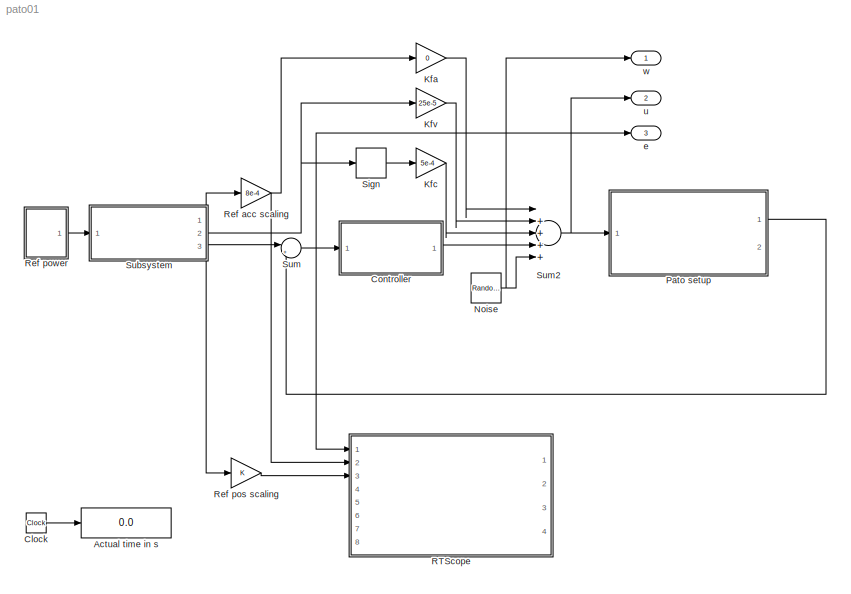
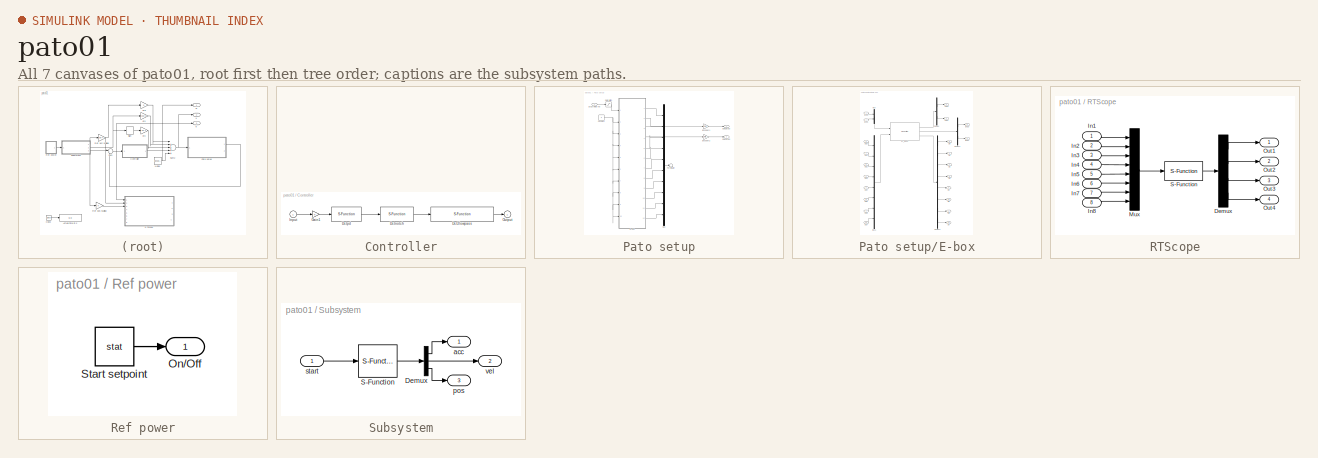
[diagram: thumbnail index - all 7 canvases of the model, root first then tree order]
MODEL pato01
KIND model
BLOCK [Display] Actual time in s
  Decimation = 1
  Lockdown = off
  Ports = [1]
  SID = 1
BLOCK [Clock] Clock
  SID = 2
BLOCK [SubSystem] Controller
  FunctionWithSeparateData = off
  MaskCallbackString = |||||||
  MaskDescription = The controller consists of three filters: a Kp/Kv, a notch and a roll-off filter.\nYou can edit the parameters below.
  MaskEnableString = on,on,on,on,on,on,on,on
  MaskHideContents = off
  MaskIconFrame = on
  MaskIconOpaque = on
  MaskIconRotate = none
  MaskIconUnits = autoscale
  MaskPortRotate = default
  MaskPromptString = Kp|Kv|Notch zeros [Hz]|Notch damping zeros [-]|Notch poles [Hz]|Notch damping poles [-]|Roll-off poles [Hz]|Roll-off damping poles [-]
  MaskStyleString = edit,edit,edit,edit,edit,edit,edit,edit
  MaskToolTipString = on,on,on,on,on,on,on,on
  MaskTunableValueString = on,on,on,on,on,on,on,on
  MaskType = Controller
  MaskValueString = .5|0.05|300|0.1|300|0.1|200|0.5
  MaskVariables = Kp=@1;Kv=@2;notch_zeros=@3;notch_damping_zeros=@4;notch_poles=@5;notch_damping_poles=@6;roll_off_poles=@7;roll_off_damping_poles=@8;
  MaskVisibilityString = on,on,on,on,on,on,on,on
  MinAlgLoopOccurrences = off
  Opaque = off
  Ports = [1, 1]
  PropExecContextOutsideSubsystem = off
  RTWSystemCode = Auto
  RequestExecContextInheritance = off
  SID = 3
BLOCK [S-Function] Controller/Dct2lowpass
  EnableBusSupport = off
  FunctionName = dlowpass2
  MaskCallbackString = |
  MaskDescription = This block implements a discrete time 2nd order lowpass filter.
  MaskDisplay = disp('DCT 2nd order lowpass')
  MaskEnableString = on,on
  MaskIconFrame = on
  MaskIconOpaque = on
  MaskIconRotate = none
  MaskIconUnits = autoscale
  MaskPortRotate = default
  MaskPromptString = Pole [Hz]|Damping pole [-]
  MaskStyleString = edit,edit
  MaskToolTipString = on,on
  MaskTunableValueString = on,on
  MaskType = dctools
  MaskValueString = roll_off_poles|roll_off_damping_poles
  MaskVariables = f_den=@1;b_den=@2;
  MaskVisibilityString = on,on
  Parameters = [f_den b_den 0.001]
  Ports = [1, 1]
  SID = 5
BLOCK [S-Function] Controller/Dctnotch
  EnableBusSupport = off
  FunctionName = dnotch
  MaskCallbackString = |||
  MaskDescription = This block implements a dicrete time 2nd order notch filter.
  MaskDisplay = disp('DCT notch')
  MaskEnableString = on,on,on,on
  MaskIconFrame = on
  MaskIconOpaque = on
  MaskIconRotate = none
  MaskIconUnits = autoscale
  MaskPortRotate = default
  MaskPromptString = Zero [Hz]|Damping zero [-]|Pole [Hz]|Damping pole [-]
  MaskStyleString = edit,edit,edit,edit
  MaskToolTipString = on,on,on,on
  MaskTunableValueString = on,on,on,on
  MaskType = dctools
  MaskValueString = notch_zeros|notch_damping_zeros|notch_poles|notch_damping_poles
  MaskVariables = f_num=@1;b_num=@2;f_den=@3;b_den=@4;
  MaskVisibilityString = on,on,on,on
  Parameters = [f_num b_num f_den b_den 0.001]
  Ports = [1, 1]
  SID = 6
BLOCK [S-Function] Controller/Dctpd
  EnableBusSupport = off
  FunctionName = dpd
  MaskCallbackString = |
  MaskDescription = This block implements a discrete time pd filter.
  MaskDisplay = disp('DCT pd')
  MaskEnableString = on,on
  MaskIconFrame = on
  MaskIconOpaque = on
  MaskIconRotate = none
  MaskIconUnits = autoscale
  MaskPortRotate = default
  MaskPromptString = Kp|Kv
  MaskStyleString = edit,edit
  MaskToolTipString = on,on
  MaskTunableValueString = on,on
  MaskType = dctools
  MaskValueString = Kp|Kv
  MaskVariables = kp=@1;kv=@2;
  MaskVisibilityString = on,on
  Parameters = [kp kv 0.001]
  Ports = [1, 1]
  SID = 7
BLOCK [Gain] Controller/Gain1
  SID = 8
BLOCK [Inport] Controller/Input
  IconDisplay = Port number
  SID = 4
BLOCK [Outport] Controller/Output
  IconDisplay = Port number
  SID = 9
BLOCK [Gain] Kfa
  Gain = 0
  SID = 10
BLOCK [Gain] Kfc
  Gain = 5e-4
  SID = 11
BLOCK [Gain] Kfv
  Gain = 25e-5
  SID = 12
BLOCK [RandomNumber] Noise
  SID = 13
  SampleTime = 0
  Variance = 0
BLOCK [SubSystem] Pato setup
  FunctionWithSeparateData = off
  MaskDescription = Inc encoder positions 1-2 [rad] (see connector pannel).\n
  MaskHideContents = off
  MaskIconFrame = off
  MaskIconOpaque = on
  MaskIconRotate = none
  MaskIconUnits = autoscale
  MaskPortRotate = default
  MaskType = Encoders
  MinAlgLoopOccurrences = off
  Opaque = off
  Ports = [1, 2]
  PropExecContextOutsideSubsystem = off
  RTWSystemCode = Auto
  RequestExecContextInheritance = off
  SID = 14
BLOCK [Constant] Pato setup/Constant
  SID = 16
  Value = 0
BLOCK [Inport] Pato setup/DAC0 (motor) [V]
  IconDisplay = Port number
  SID = 15
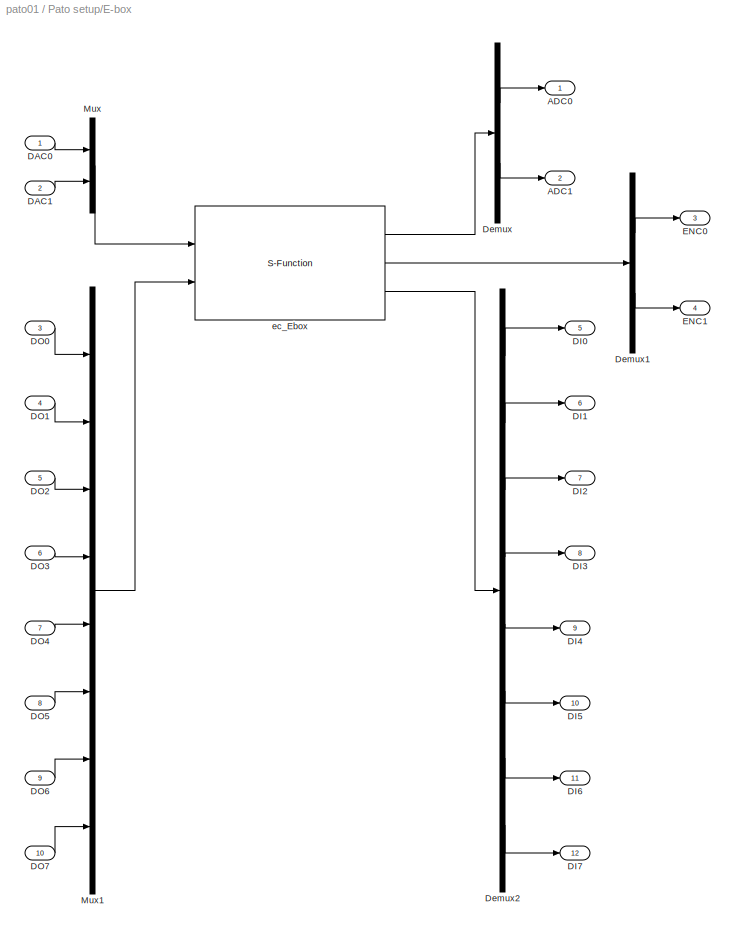
BLOCK [SubSystem] Pato setup/E-box
  FunctionWithSeparateData = off
  MaskEnableString = on
  MaskHideContents = off
  MaskIconFrame = on
  MaskIconOpaque = on
  MaskIconRotate = none
  MaskIconUnits = autoscale
  MaskPortRotate = default
  MaskPromptString = Link id (>=0)
  MaskStyleString = edit
  MaskToolTipString = on
  MaskTunableValueString = on
  MaskType = E-box
  MaskValueString = 0
  MaskVariables = link_id=@1;
  MaskVisibilityString = on
  MinAlgLoopOccurrences = off
  Opaque = off
  Ports = [10, 12]
  PropExecContextOutsideSubsystem = off
  RTWSystemCode = Auto
  RequestExecContextInheritance = off
  SID = 17
BLOCK [Outport] Pato setup/E-box/ADC0
  IconDisplay = Port number
  SID = 34
BLOCK [Outport] Pato setup/E-box/ADC1
  IconDisplay = Port number
  Port = 2
  SID = 35
BLOCK [Inport] Pato setup/E-box/DAC0
  IconDisplay = Port number
  SID = 18
BLOCK [Inport] Pato setup/E-box/DAC1
  IconDisplay = Port number
  Port = 2
  SID = 19
BLOCK [Outport] Pato setup/E-box/DI0
  IconDisplay = Port number
  Port = 5
  SID = 38
BLOCK [Outport] Pato setup/E-box/DI1
  IconDisplay = Port number
  Port = 6
  SID = 39
BLOCK [Outport] Pato setup/E-box/DI2
  IconDisplay = Port number
  Port = 7
  SID = 40
BLOCK [Outport] Pato setup/E-box/DI3
  IconDisplay = Port number
  Port = 8
  SID = 41
BLOCK [Outport] Pato setup/E-box/DI4
  IconDisplay = Port number
  Port = 9
  SID = 42
BLOCK [Outport] Pato setup/E-box/DI5
  IconDisplay = Port number
  Port = 10
  SID = 43
BLOCK [Outport] Pato setup/E-box/DI6
  IconDisplay = Port number
  Port = 11
  SID = 44
BLOCK [Outport] Pato setup/E-box/DI7
  IconDisplay = Port number
  Port = 12
  SID = 45
BLOCK [Inport] Pato setup/E-box/DO0
  IconDisplay = Port number
  Port = 3
  SID = 20
BLOCK [Inport] Pato setup/E-box/DO1
  IconDisplay = Port number
  Port = 4
  SID = 21
BLOCK [Inport] Pato setup/E-box/DO2
  IconDisplay = Port number
  Port = 5
  SID = 22
BLOCK [Inport] Pato setup/E-box/DO3
  IconDisplay = Port number
  Port = 6
  SID = 23
BLOCK [Inport] Pato setup/E-box/DO4
  IconDisplay = Port number
  Port = 7
  SID = 24
BLOCK [Inport] Pato setup/E-box/DO5
  IconDisplay = Port number
  Port = 8
  SID = 25
BLOCK [Inport] Pato setup/E-box/DO6
  IconDisplay = Port number
  Port = 9
  SID = 26
BLOCK [Inport] Pato setup/E-box/DO7
  IconDisplay = Port number
  Port = 10
  SID = 27
BLOCK [Demux] Pato setup/E-box/Demux
  DisplayOption = bar
  Outputs = 2
  Ports = [1, 2]
  SID = 28
BLOCK [Demux] Pato setup/E-box/Demux1
  DisplayOption = bar
  Outputs = 2
  Ports = [1, 2]
  SID = 29
BLOCK [Demux] Pato setup/E-box/Demux2
  DisplayOption = bar
  Outputs = 8
  Ports = [1, 8]
  SID = 30
BLOCK [Outport] Pato setup/E-box/ENC0
  IconDisplay = Port number
  Port = 3
  SID = 36
BLOCK [Outport] Pato setup/E-box/ENC1
  IconDisplay = Port number
  Port = 4
  SID = 37
BLOCK [Mux] Pato setup/E-box/Mux
  DisplayOption = bar
  Inputs = 2
  Ports = [2, 1]
  SID = 31
BLOCK [Mux] Pato setup/E-box/Mux1
  DisplayOption = bar
  Inputs = 8
  Ports = [8, 1]
  SID = 32
BLOCK [S-Function] Pato setup/E-box/ec_Ebox
  EnableBusSupport = off
  FunctionName = ec_Ebox
  MaskDisplay = port_label('output',1,'ADC')\nport_label('output',2,'ENC')\nport_label('output',3,'DI')\nport_label('input',1,'DAC')\nport_label('input',2,'DO')
  MaskEnableString = on
  MaskIconFrame = on
  MaskIconOpaque = on
  MaskIconRotate = none
  MaskIconUnits = autoscale
  MaskPortRotate = default
  MaskPromptString = analog in id (start from 1)
  MaskStyleString = edit
  MaskToolTipString = on
  MaskTunableValueString = on
  MaskValueString = link_id
  MaskVariables = link_id=@1;
  MaskVisibilityString = on
  Parameters = link_id
  Ports = [2, 3]
  SID = 33
BLOCK [Outport] Pato setup/ENC0 [rad]
  IconDisplay = Port number
  SID = 48
BLOCK [Outport] Pato setup/ENC1 [rad]
  IconDisplay = Port number
  Port = 2
  SID = 49
BLOCK [Gain] Pato setup/Encoder 1
  Gain = (2*pi)/(500*4)
  SID = 46
BLOCK [Gain] Pato setup/Encoder 2
  Gain = 2*pi/(500*4)
  SID = 47
BLOCK [Mux] Pato setup/Mux
  DisplayOption = bar
  Inputs = 10
  Ports = [10, 1]
  SID = 85
BLOCK [Saturate] Pato setup/Saturation
  InputPortMap = u0
  LowerLimit = -2.5
  Ports = [1, 1]
  SID = 86
  UpperLimit = 2.5
BLOCK [Terminator] Pato setup/Terminator
  SID = 84
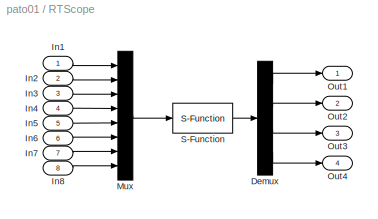
BLOCK [SubSystem] RTScope
  FunctionWithSeparateData = off
  MaskDisplay = image(imread('rtscope2.jpg'))
  MaskHideContents = off
  MaskIconFrame = on
  MaskIconOpaque = on
  MaskIconRotate = none
  MaskIconUnits = autoscale
  MaskPortRotate = default
  MaskType = RTScope
  MinAlgLoopOccurrences = off
  Opaque = off
  OpenFcn = rtscope
  Ports = [8, 4]
  PropExecContextOutsideSubsystem = off
  RTWSystemCode = Auto
  RequestExecContextInheritance = off
  SID = 50
BLOCK [Demux] RTScope/Demux
  Ports = [1, 4]
  SID = 59
BLOCK [Inport] RTScope/In1
  IconDisplay = Port number
  SID = 51
BLOCK [Inport] RTScope/In2
  IconDisplay = Port number
  Port = 2
  SID = 52
BLOCK [Inport] RTScope/In3
  IconDisplay = Port number
  Port = 3
  SID = 53
BLOCK [Inport] RTScope/In4
  IconDisplay = Port number
  Port = 4
  SID = 54
BLOCK [Inport] RTScope/In5
  IconDisplay = Port number
  Port = 5
  SID = 55
BLOCK [Inport] RTScope/In6
  IconDisplay = Port number
  Port = 6
  SID = 56
BLOCK [Inport] RTScope/In7
  IconDisplay = Port number
  Port = 7
  SID = 57
BLOCK [Inport] RTScope/In8
  IconDisplay = Port number
  Port = 8
  SID = 58
BLOCK [Mux] RTScope/Mux
  DisplayOption = bar
  Inputs = 8
  Ports = [8, 1]
  SID = 60
BLOCK [Outport] RTScope/Out1
  IconDisplay = Port number
  SID = 62
BLOCK [Outport] RTScope/Out2
  IconDisplay = Port number
  Port = 2
  SID = 63
BLOCK [Outport] RTScope/Out3
  IconDisplay = Port number
  Port = 3
  SID = 64
BLOCK [Outport] RTScope/Out4
  IconDisplay = Port number
  Port = 4
  SID = 65
BLOCK [S-Function] RTScope/S-Function
  EnableBusSupport = off
  FunctionName = sf_rt_scope
  Parameters = 4096
  Ports = [1, 1]
  SID = 61
BLOCK [Gain] Ref acc scaling 
  Gain = 8e-4
  SID = 66
BLOCK [Gain] Ref pos scaling
  SID = 67
BLOCK [SubSystem] Ref power
  FunctionWithSeparateData = off
  MaskEnableString = on
  MaskHideContents = off
  MaskIconFrame = on
  MaskIconOpaque = off
  MaskIconRotate = none
  MaskIconUnits = autoscale
  MaskPortRotate = default
  MaskPromptString = Switch
  MaskStyleString = popup(On|Off)
  MaskToolTipString = on
  MaskTunableValueString = on
  MaskType = On/Off Switch
  MaskValueString = Off
  MaskVariables = stat=@1;
  MaskVisibilityString = on
  MinAlgLoopOccurrences = off
  Opaque = off
  Ports = [0, 1]
  PropExecContextOutsideSubsystem = off
  RTWSystemCode = Auto
  RequestExecContextInheritance = off
  SID = 68
BLOCK [Outport] Ref power/On//Off
  IconDisplay = Port number
  SID = 70
BLOCK [Constant] Ref power/Start setpoint
  SID = 69
  Value = stat
BLOCK [Signum] Sign
  SID = 71
BLOCK [SubSystem] Subsystem
  FunctionWithSeparateData = off
  MaskDisplay = disp('Ref3');\n
  MaskHideContents = off
  MaskIconFrame = off
  MaskIconOpaque = off
  MaskIconRotate = none
  MaskIconUnits = autoscale
  MaskPortRotate = default
  MaskType = Ref3
  MinAlgLoopOccurrences = off
  Opaque = off
  OpenFcn = global ref_part; cb_axes 1
  Ports = [1, 3]
  PropExecContextOutsideSubsystem = off
  RTWSystemCode = Auto
  RequestExecContextInheritance = off
  SID = 72
BLOCK [Demux] Subsystem/Demux
  Outputs = 3
  Ports = [1, 3]
  SID = 74
BLOCK [S-Function] Subsystem/S-Function
  EnableBusSupport = off
  FunctionName = ref3b
  OpenFcn = global ref_part; r3g_main
  Parameters = ref_part
  Ports = [1, 1]
  SID = 75
BLOCK [Outport] Subsystem/acc
  IconDisplay = Port number
  SID = 76
BLOCK [Outport] Subsystem/pos
  IconDisplay = Port number
  Port = 3
  SID = 78
BLOCK [Inport] Subsystem/start
  IconDisplay = Port number
  SID = 73
BLOCK [Outport] Subsystem/vel
  IconDisplay = Port number
  Port = 2
  SID = 77
BLOCK [Sum] Sum
  IconShape = round
  Inputs = |+-
  Ports = [2, 1]
  SID = 79
BLOCK [Sum] Sum2
  Description = sumff
  Inputs = |+++++
  Ports = [5, 1]
  SID = 80
BLOCK [Outport] e
  IconDisplay = Port number
  Port = 3
  SID = 83
BLOCK [Outport] u
  IconDisplay = Port number
  Port = 2
  SID = 82
BLOCK [Outport] w
  IconDisplay = Port number
  SID = 81
LINE Clock:1 -> Actual time in s:1
LINE Controller/Dct2lowpass:1 -> Controller/Output:1
LINE Controller/Dctnotch:1 -> Controller/Dct2lowpass:1
LINE Controller/Dctpd:1 -> Controller/Dctnotch:1
LINE Controller/Gain1:1 -> Controller/Dctpd:1
LINE Controller/Input:1 -> Controller/Gain1:1
LINE Controller:1 -> Sum2:4
LINE Kfa:1 -> Sum2:1
LINE Kfc:1 -> Sum2:3
LINE Kfv:1 -> Sum2:2
NET Noise:1 -> Sum2:5, w:1
NET Pato setup/Constant:1 -> Pato setup/E-box:10, Pato setup/E-box:2, Pato setup/E-box:3, Pato setup/E-box:4, Pato setup/E-box:5, Pato setup/E-box:6, Pato setup/E-box:7, Pato setup/E-box:8, Pato setup/E-box:9
LINE Pato setup/DAC0 (motor) [V]:1 -> Pato setup/Saturation:1
LINE Pato setup/E-box/DAC0:1 -> Pato setup/E-box/Mux:1
LINE Pato setup/E-box/DAC1:1 -> Pato setup/E-box/Mux:2
LINE Pato setup/E-box/DO0:1 -> Pato setup/E-box/Mux1:1
LINE Pato setup/E-box/DO1:1 -> Pato setup/E-box/Mux1:2
LINE Pato setup/E-box/DO2:1 -> Pato setup/E-box/Mux1:3
LINE Pato setup/E-box/DO3:1 -> Pato setup/E-box/Mux1:4
LINE Pato setup/E-box/DO4:1 -> Pato setup/E-box/Mux1:5
LINE Pato setup/E-box/DO5:1 -> Pato setup/E-box/Mux1:6
LINE Pato setup/E-box/DO6:1 -> Pato setup/E-box/Mux1:7
LINE Pato setup/E-box/DO7:1 -> Pato setup/E-box/Mux1:8
LINE Pato setup/E-box/Demux1:1 -> Pato setup/E-box/ENC0:1
LINE Pato setup/E-box/Demux1:2 -> Pato setup/E-box/ENC1:1
LINE Pato setup/E-box/Demux2:1 -> Pato setup/E-box/DI0:1
LINE Pato setup/E-box/Demux2:2 -> Pato setup/E-box/DI1:1
LINE Pato setup/E-box/Demux2:3 -> Pato setup/E-box/DI2:1
LINE Pato setup/E-box/Demux2:4 -> Pato setup/E-box/DI3:1
LINE Pato setup/E-box/Demux2:5 -> Pato setup/E-box/DI4:1
LINE Pato setup/E-box/Demux2:6 -> Pato setup/E-box/DI5:1
LINE Pato setup/E-box/Demux2:7 -> Pato setup/E-box/DI6:1
LINE Pato setup/E-box/Demux2:8 -> Pato setup/E-box/DI7:1
LINE Pato setup/E-box/Demux:1 -> Pato setup/E-box/ADC0:1
LINE Pato setup/E-box/Demux:2 -> Pato setup/E-box/ADC1:1
LINE Pato setup/E-box/Mux1:1 -> Pato setup/E-box/ec_Ebox:2
LINE Pato setup/E-box/Mux:1 -> Pato setup/E-box/ec_Ebox:1
LINE Pato setup/E-box/ec_Ebox:1 -> Pato setup/E-box/Demux:1
LINE Pato setup/E-box/ec_Ebox:2 -> Pato setup/E-box/Demux1:1
LINE Pato setup/E-box/ec_Ebox:3 -> Pato setup/E-box/Demux2:1
LINE Pato setup/E-box:1 -> Pato setup/Mux:1
LINE Pato setup/E-box:10 -> Pato setup/Mux:8
LINE Pato setup/E-box:11 -> Pato setup/Mux:9
LINE Pato setup/E-box:12 -> Pato setup/Mux:10
LINE Pato setup/E-box:2 -> Pato setup/Mux:2
LINE Pato setup/E-box:3 -> Pato setup/Encoder 1:1
LINE Pato setup/E-box:4 -> Pato setup/Encoder 2:1
LINE Pato setup/E-box:5 -> Pato setup/Mux:3
LINE Pato setup/E-box:6 -> Pato setup/Mux:4
LINE Pato setup/E-box:7 -> Pato setup/Mux:5
LINE Pato setup/E-box:8 -> Pato setup/Mux:6
LINE Pato setup/E-box:9 -> Pato setup/Mux:7
LINE Pato setup/Encoder 1:1 -> Pato setup/ENC0 [rad]:1
LINE Pato setup/Encoder 2:1 -> Pato setup/ENC1 [rad]:1
LINE Pato setup/Mux:1 -> Pato setup/Terminator:1
LINE Pato setup/Saturation:1 -> Pato setup/E-box:1
LINE Pato setup:1 -> Sum:2
LINE RTScope/Demux:1 -> RTScope/Out1:1
LINE RTScope/Demux:2 -> RTScope/Out2:1
LINE RTScope/Demux:3 -> RTScope/Out3:1
LINE RTScope/Demux:4 -> RTScope/Out4:1
LINE RTScope/In1:1 -> RTScope/Mux:1
LINE RTScope/In2:1 -> RTScope/Mux:2
LINE RTScope/In3:1 -> RTScope/Mux:3
LINE RTScope/In4:1 -> RTScope/Mux:4
LINE RTScope/In5:1 -> RTScope/Mux:5
LINE RTScope/In6:1 -> RTScope/Mux:6
LINE RTScope/In7:1 -> RTScope/Mux:7
LINE RTScope/In8:1 -> RTScope/Mux:8
LINE RTScope/Mux:1 -> RTScope/S-Function:1
LINE RTScope/S-Function:1 -> RTScope/Demux:1
NET Ref acc scaling :1 -> Kfa:1, RTScope:2
LINE Ref pos scaling:1 -> RTScope:3
LINE Ref power/Start setpoint:1 -> Ref power/On//Off:1
LINE Ref power:1 -> Subsystem:1
LINE Sign:1 -> Kfc:1
LINE Subsystem/Demux:1 -> Subsystem/acc:1
LINE Subsystem/Demux:2 -> Subsystem/vel:1
LINE Subsystem/Demux:3 -> Subsystem/pos:1
LINE Subsystem/S-Function:1 -> Subsystem/Demux:1
LINE Subsystem/start:1 -> Subsystem/S-Function:1
LINE Subsystem:1 -> Ref acc scaling :1
NET Subsystem:2 -> Kfv:1, Sign:1
NET Subsystem:3 -> Ref pos scaling:1, Sum:1
NET Sum2:1 -> Pato setup:1, u:1
NET Sum:1 -> Controller:1, RTScope:1, e:1
note: NET lines group one-source signal fan-out (src -> all destinations, sorted); 1:1 wires keep LINE
